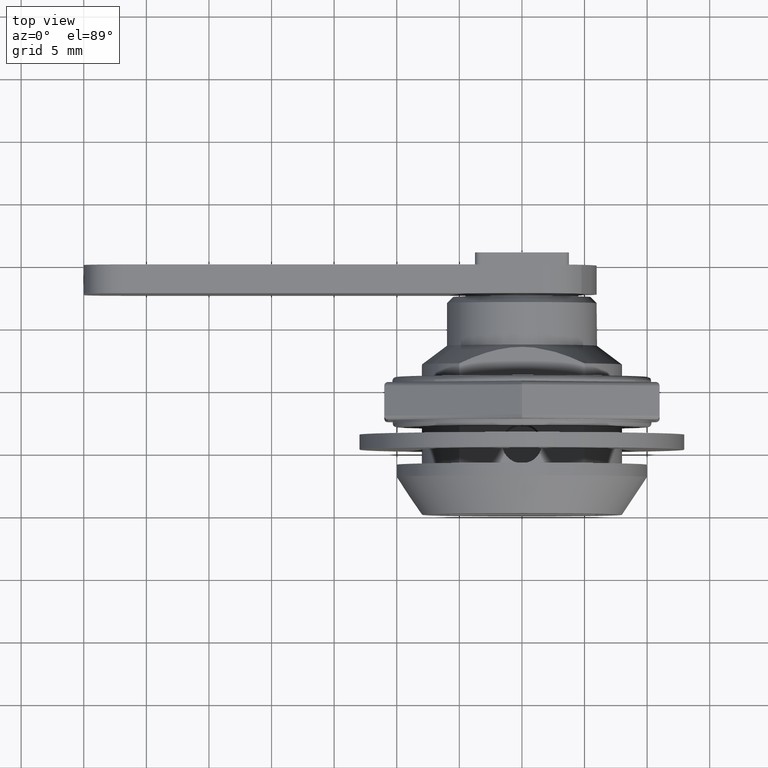
[diagram: clean part render]
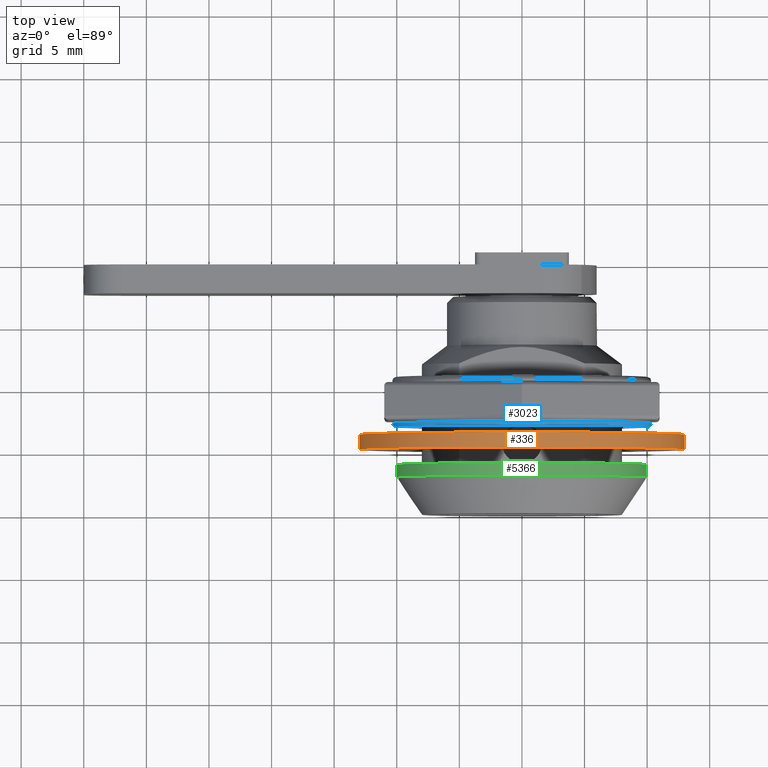
[diagram: same view with three faces highlighted in distinct colors, each labeled with its STEP entity id]
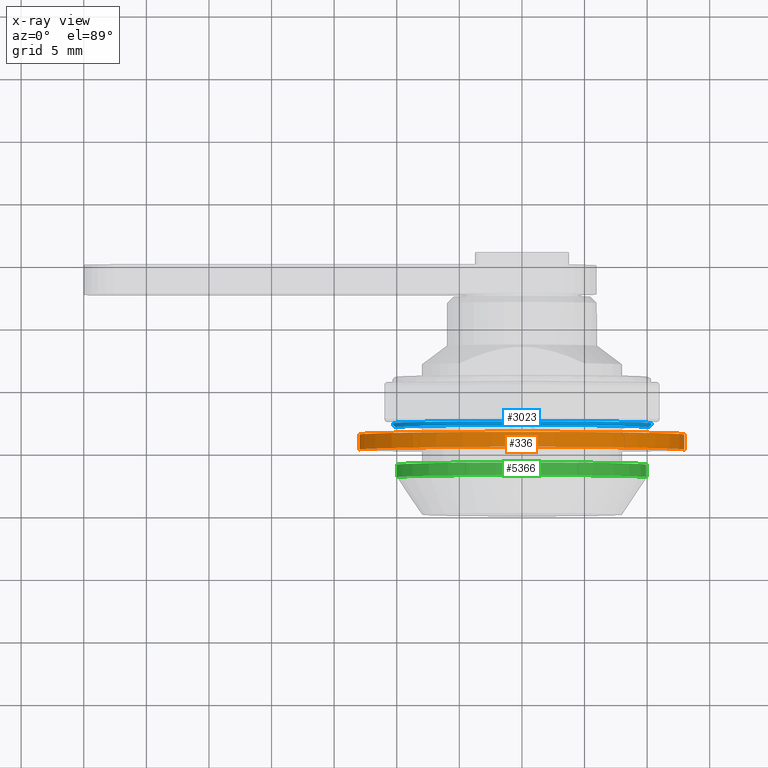
[diagram: x-ray of the same camera — body ghosted, the three highlighted faces saturated]
A machine part, top view with three faces highlighted in distinct colors.
The next image is the same camera in x-ray (body ghosted, the three faces saturated) — at least one of them is partly hidden behind the body in this view.
Their STEP definitions:

[orange] entity #336 — the highlighted face is a freeform B-spline surface patch.
#234=CARTESIAN_POINT('',(12.909123842727665,6.430000000000005,-1.534445050537861));
#235=CARTESIAN_POINT('',(12.953039000831874,6.430000000000006,-1.164991472293710));
#236=CARTESIAN_POINT('',(12.975752379484270,6.430000000000004,-0.793631013953141));
#237=CARTESIAN_POINT('',(13.769383393437407,6.430000000000005,12.182121365531126));
#238=CARTESIAN_POINT('',(0.793631013953141,6.430000000000004,12.975752379484270));
#239=CARTESIAN_POINT('',(-12.182121365531126,6.430000000000005,13.769383393437407));
#240=CARTESIAN_POINT('',(-12.975752379484270,6.430000000000004,0.793631013953140));
#241=CARTESIAN_POINT('',(12.909123842727665,5.169249999999896,-1.534445050537861));
#242=CARTESIAN_POINT('',(12.953039000831874,5.169249999999896,-1.164991472293710));
#243=CARTESIAN_POINT('',(12.975752379484270,5.169249999999896,-0.793631013953141));
#244=CARTESIAN_POINT('',(13.769383393437407,5.169249999999895,12.182121365531126));
#245=CARTESIAN_POINT('',(0.793631013953141,5.169249999999896,12.975752379484270));
#246=CARTESIAN_POINT('',(-12.182121365531126,5.169249999999895,13.769383393437407));
#247=CARTESIAN_POINT('',(-12.975752379484270,5.169249999999896,0.793631013953140));
#255=(BOUNDED_SURFACE()B_SPLINE_SURFACE(2,1,((#234,#241),(#235,#242),(#236,#243),(#237,#244),(#238,#245),(#239,#246),(#240,#247)),.UNSPECIFIED.,.F.,.F.,.U.)B_SPLINE_SURFACE_WITH_KNOTS((3,2,2,3),(2,2),(0.0,0.861564209736039,22.400669453136981,43.939774696537917),(0.0,1.0),.UNSPECIFIED.)GEOMETRIC_REPRESENTATION_ITEM()RATIONAL_B_SPLINE_SURFACE(((0.977505800795127,0.977505800795127),(0.988284271247462,0.988284271247462),(1.0,1.0),(0.707106781186548,0.707106781186548),(1.0,1.0),(0.707106781186548,0.707106781186548),(1.0,1.0)))REPRESENTATION_ITEM('')SURFACE());
#256=CARTESIAN_POINT('',(12.909125087294809,5.200000000000451,-1.534434580053699));
#257=VERTEX_POINT('',#256);
#258=CARTESIAN_POINT('',(0.0,5.199999999999900,13.0));
#259=VERTEX_POINT('',#258);
#260=CARTESIAN_POINT('',(12.909125087294804,5.200000000000450,-1.534434580053699));
#261=CARTESIAN_POINT('',(13.000000000000002,5.199999999999900,-0.769908264887077));
#262=CARTESIAN_POINT('',(13.0,5.199999999999900,-3.061516E-016));
#263=CARTESIAN_POINT('',(13.0,5.199999999999900,13.0));
#264=CARTESIAN_POINT('',(0.0,5.199999999999900,13.0));
#272=(BOUNDED_CURVE()B_SPLINE_CURVE(2,(#260,#261,#262,#263,#264),.UNSPECIFIED.,.F.,.U.)B_SPLINE_CURVE_WITH_KNOTS((3,2,3),(0.229562610592796,0.250000000000000,0.500000000000000),.UNSPECIFIED.)CURVE()GEOMETRIC_REPRESENTATION_ITEM()RATIONAL_B_SPLINE_CURVE((0.956027022864890,0.976056108929521,1.0,0.707106781186547,1.0))REPRESENTATION_ITEM(''));
#273=EDGE_CURVE('',#257,#259,#272,.T.);
#274=ORIENTED_EDGE('',*,*,#273,.F.);
#275=CARTESIAN_POINT('',(12.909125071950459,6.400000000000000,-1.534434709145851));
#276=VERTEX_POINT('',#275);
#277=CARTESIAN_POINT('',(12.909125071950459,6.400000000000000,-1.534434709145851));
#278=CARTESIAN_POINT('',(12.909125087294809,5.200000000000451,-1.534434580053699));
#279=QUASI_UNIFORM_CURVE('',1,(#277,#278),.UNSPECIFIED.,.F.,.U.);
#280=EDGE_CURVE('',#276,#257,#279,.T.);
#281=ORIENTED_EDGE('',*,*,#280,.F.);
#282=CARTESIAN_POINT('',(0.0,6.400000000000000,13.0));
#283=VERTEX_POINT('',#282);
#284=CARTESIAN_POINT('',(12.909125071950459,6.400000000000000,-1.534434709145851));
#285=CARTESIAN_POINT('',(12.999999999999998,6.400000000000001,-0.769908330115510));
#286=CARTESIAN_POINT('',(13.0,6.400000000000000,-3.061516E-016));
#287=CARTESIAN_POINT('',(13.0,6.400000000000000,13.0));
#288=CARTESIAN_POINT('',(0.0,6.400000000000000,13.0));
#296=(BOUNDED_CURVE()B_SPLINE_CURVE(2,(#284,#285,#286,#287,#288),.UNSPECIFIED.,.F.,.U.)B_SPLINE_CURVE_WITH_KNOTS((3,2,3),(0.229562608902752,0.250000000000000,0.500000000000000),.UNSPECIFIED.)CURVE()GEOMETRIC_REPRESENTATION_ITEM()RATIONAL_B_SPLINE_CURVE((0.956027019552329,0.976056106949510,1.0,0.707106781186547,1.0))REPRESENTATION_ITEM(''));
#297=EDGE_CURVE('',#276,#283,#296,.T.);
#298=ORIENTED_EDGE('',*,*,#297,.T.);
#299=CARTESIAN_POINT('',(-12.975753376607109,6.400000000000000,0.793614710802584));
#300=VERTEX_POINT('',#299);
#301=CARTESIAN_POINT('',(0.0,6.400000000000000,13.0));
#302=CARTESIAN_POINT('',(-12.229194263626280,6.400000000000000,13.000000000000002));
#303=CARTESIAN_POINT('',(-12.975753376607114,6.400000000000000,0.793614710802584));
#311=(BOUNDED_CURVE()B_SPLINE_CURVE(2,(#301,#302,#303),.UNSPECIFIED.,.F.,.U.)B_SPLINE_CURVE_WITH_KNOTS((3,3),(0.500000000000000,0.739333179035312),.UNSPECIFIED.)CURVE()GEOMETRIC_REPRESENTATION_ITEM()RATIONAL_B_SPLINE_CURVE((1.0,0.719603739293964,0.976072506303046))REPRESENTATION_ITEM(''));
#312=EDGE_CURVE('',#283,#300,#311,.T.);
#313=ORIENTED_EDGE('',*,*,#312,.T.);
#314=CARTESIAN_POINT('',(-12.975753389061961,5.200000000000066,0.793614507159091));
#315=VERTEX_POINT('',#314);
#316=CARTESIAN_POINT('',(-12.975753376607109,6.400000000000000,0.793614710802584));
#317=CARTESIAN_POINT('',(-12.975753389061961,5.200000000000066,0.793614507159091));
#318=QUASI_UNIFORM_CURVE('',1,(#316,#317),.UNSPECIFIED.,.F.,.U.);
#319=EDGE_CURVE('',#300,#315,#318,.T.);
#320=ORIENTED_EDGE('',*,*,#319,.T.);
#321=CARTESIAN_POINT('',(0.0,5.199999999999900,13.0));
#322=CARTESIAN_POINT('',(-12.229194455911772,5.199999999999901,12.999999999999998));
#323=CARTESIAN_POINT('',(-12.975753389061964,5.200000000000066,0.793614507159091));
#331=(BOUNDED_CURVE()B_SPLINE_CURVE(2,(#321,#322,#323),.UNSPECIFIED.,.F.,.U.)B_SPLINE_CURVE_WITH_KNOTS((3,3),(0.500000000000000,0.739333181743289),.UNSPECIFIED.)CURVE()GEOMETRIC_REPRESENTATION_ITEM()RATIONAL_B_SPLINE_CURVE((1.0,0.719603736121372,0.976072512106768))REPRESENTATION_ITEM(''));
#332=EDGE_CURVE('',#259,#315,#331,.T.);
#333=ORIENTED_EDGE('',*,*,#332,.F.);
#334=EDGE_LOOP('',(#274,#281,#298,#313,#320,#333));
#335=FACE_OUTER_BOUND('',#334,.T.);
#336=ADVANCED_FACE('',(#335),#255,.T.);

[blue] entity #3023 — the highlighted face is a freeform B-spline surface patch.
#2464=CARTESIAN_POINT('',(10.344483178601459,7.299999999541669,-0.129999452427076));
#2465=VERTEX_POINT('',#2464);
#2527=CARTESIAN_POINT('',(-10.320116165581149,7.299999999519034,0.721411407527404));
#2528=VERTEX_POINT('',#2527);
#2544=CARTESIAN_POINT('',(-3.577206E-015,7.299999999999900,10.345300000000000));
#2545=VERTEX_POINT('',#2544);
#2546=CARTESIAN_POINT('',(-3.577206E-015,7.299999999999900,10.345300000000000));
#2547=CARTESIAN_POINT('',(-9.647373446019955,7.299999999999902,10.345300000000002));
#2548=CARTESIAN_POINT('',(-10.320116165581148,7.299999999519034,0.721411407527404));
#2556=(BOUNDED_CURVE()B_SPLINE_CURVE(2,(#2546,#2547,#2548),.UNSPECIFIED.,.F.,.U.)B_SPLINE_CURVE_WITH_KNOTS((3,3),(0.500000000000000,0.737833686535003),.UNSPECIFIED.)CURVE()GEOMETRIC_REPRESENTATION_ITEM()RATIONAL_B_SPLINE_CURVE((1.0,0.721360504033973,0.972879876386788))REPRESENTATION_ITEM(''));
#2557=EDGE_CURVE('',#2545,#2528,#2556,.T.);
#2559=CARTESIAN_POINT('',(10.344483178601461,7.299999999541669,-0.129999452427076));
#2560=CARTESIAN_POINT('',(10.345299999999995,7.299999999999900,-0.065002292378328));
#2561=CARTESIAN_POINT('',(10.345300000000000,7.299999999999900,0.0));
#2562=CARTESIAN_POINT('',(10.345299999999996,7.299999999999901,10.345300000000000));
#2563=CARTESIAN_POINT('',(-3.577206E-015,7.299999999999900,10.345300000000000));
#2571=(BOUNDED_CURVE()B_SPLINE_CURVE(2,(#2559,#2560,#2561,#2562,#2563),.UNSPECIFIED.,.F.,.U.)B_SPLINE_CURVE_WITH_KNOTS((3,2,3),(0.247784295920986,0.250000000000000,0.500000000000000),.UNSPECIFIED.)CURVE()GEOMETRIC_REPRESENTATION_ITEM()RATIONAL_B_SPLINE_CURVE((0.994854295642304,0.997404141201438,1.0,0.707106781186548,1.0))REPRESENTATION_ITEM(''));
#2572=EDGE_CURVE('',#2465,#2545,#2571,.T.);
#2897=CARTESIAN_POINT('',(-10.020846464315451,6.999999999999900,0.700491432120691));
#2898=VERTEX_POINT('',#2897);
#2916=CARTESIAN_POINT('',(-10.320116165581151,7.299999999519034,0.721411407527404));
#2917=CARTESIAN_POINT('',(-10.320116164622036,7.000000001777644,0.721411407456358));
#2918=CARTESIAN_POINT('',(-10.020846464315452,6.999999999999900,0.700491432120691));
#2926=(BOUNDED_CURVE()B_SPLINE_CURVE(2,(#2916,#2917,#2918),.UNSPECIFIED.,.F.,.U.)B_SPLINE_CURVE_WITH_KNOTS((3,3),(-1.725134639994306,-0.274865362795078),.UNSPECIFIED.)CURVE()GEOMETRIC_REPRESENTATION_ITEM()RATIONAL_B_SPLINE_CURVE((0.863472074226119,0.610566961494270,0.863472073253266))REPRESENTATION_ITEM(''));
#2927=EDGE_CURVE('',#2528,#2898,#2926,.T.);
#2933=CARTESIAN_POINT('',(10.044506872416360,6.999999999999901,-0.126229640664328));
#2934=VERTEX_POINT('',#2933);
#2935=CARTESIAN_POINT('',(10.344483178601461,7.299999999541669,-0.129999452427076));
#2936=CARTESIAN_POINT('',(10.344483177685339,7.000000014155956,-0.129999452393732));
#2937=CARTESIAN_POINT('',(10.044506872416360,6.999999999999901,-0.126229640664328));
#2945=(BOUNDED_CURVE()B_SPLINE_CURVE(2,(#2935,#2936,#2937),.UNSPECIFIED.,.F.,.U.)B_SPLINE_CURVE_WITH_KNOTS((3,3),(-1.725134640149041,-0.274865405108078),.UNSPECIFIED.)CURVE()GEOMETRIC_REPRESENTATION_ITEM()RATIONAL_B_SPLINE_CURVE((0.883342148535299,0.624617233319113,0.883342132387755))REPRESENTATION_ITEM(''));
#2946=EDGE_CURVE('',#2465,#2934,#2945,.T.);
#2964=CARTESIAN_POINT('',(10.343757029179558,7.320861368123443,-0.129990326862133));
#2965=CARTESIAN_POINT('',(10.473747356041690,7.320861368123441,10.213766702317425));
#2966=CARTESIAN_POINT('',(0.129990326862131,7.320861368123443,10.343757029179562));
#2967=CARTESIAN_POINT('',(-9.638172205141423,7.320861368123442,10.466513841505643));
#2968=CARTESIAN_POINT('',(-10.319391726645135,7.320861368123444,0.721360766764703));
#2969=CARTESIAN_POINT('',(10.367742797913220,6.976738261514663,-0.130291756788313));
#2970=CARTESIAN_POINT('',(10.498034554701537,6.976738261514665,10.237451041124910));
#2971=CARTESIAN_POINT('',(0.130291756788310,6.976738261514663,10.367742797913223));
#2972=CARTESIAN_POINT('',(-9.660521818427540,6.976738261514664,10.490784266626983));
#2973=CARTESIAN_POINT('',(-10.343320995548988,6.976738261514664,0.723033504482376));
#2974=CARTESIAN_POINT('',(10.023646882783217,7.000726224994313,-0.125967492369351));
#2975=CARTESIAN_POINT('',(10.149614375152563,7.000726224994313,9.897679390413867));
#2976=CARTESIAN_POINT('',(0.125967492369348,7.000726224994313,10.023646882783220));
#2977=CARTESIAN_POINT('',(-9.339897921737675,7.000726224994313,10.142604717517889));
#2978=CARTESIAN_POINT('',(-10.000035617736263,7.000726224994315,0.699036682778370));
#2986=(BOUNDED_SURFACE()B_SPLINE_SURFACE(2,2,((#2964,#2969,#2974),(#2965,#2970,#2975),(#2966,#2971,#2976),(#2967,#2972,#2977),(#2968,#2973,#2978)),.UNSPECIFIED.,.F.,.F.,.U.)B_SPLINE_SURFACE_WITH_KNOTS((3,2,3),(3,3),(0.0,17.139451048516520,33.593324055092388),(0.0,0.546713060002787),.UNSPECIFIED.)GEOMETRIC_REPRESENTATION_ITEM()RATIONAL_B_SPLINE_SURFACE(((0.910480121353096,0.597479071145387,0.910480483917619),(0.643806667944325,0.422481502823943,0.643806924316158),(0.910480121353096,0.597479071145387,0.910480483917619),(0.654473606080676,0.429481405556801,0.654473866700216),(0.889999600131302,0.584039257898300,0.889999954540227)))REPRESENTATION_ITEM('')SURFACE());
#2987=CARTESIAN_POINT('',(-3.577206E-015,6.999999999999901,10.045299999999999));
#2988=VERTEX_POINT('',#2987);
#2989=CARTESIAN_POINT('',(-3.577206E-015,6.999999999999901,10.045299999999999));
#2990=CARTESIAN_POINT('',(-9.367612391832546,6.999999999999900,10.045300000000001));
#2991=CARTESIAN_POINT('',(-10.020846464315452,6.999999999999900,0.700491432120691));
#2999=(BOUNDED_CURVE()B_SPLINE_CURVE(2,(#2989,#2990,#2991),.UNSPECIFIED.,.F.,.U.)B_SPLINE_CURVE_WITH_KNOTS((3,3),(0.500000000000000,0.737833686534863),.UNSPECIFIED.)CURVE()GEOMETRIC_REPRESENTATION_ITEM()RATIONAL_B_SPLINE_CURVE((1.0,0.721360504034137,0.972879876386492))REPRESENTATION_ITEM(''));
#3000=EDGE_CURVE('',#2988,#2898,#2999,.T.);
#3001=ORIENTED_EDGE('',*,*,#3000,.F.);
#3002=CARTESIAN_POINT('',(10.044506872416360,6.999999999999901,-0.126229640664328));
#3003=CARTESIAN_POINT('',(10.045299999999994,6.999999999999901,-0.063117312094089));
#3004=CARTESIAN_POINT('',(10.045299999999999,6.999999999999901,0.0));
#3005=CARTESIAN_POINT('',(10.045299999999997,6.999999999999899,10.045299999999999));
#3006=CARTESIAN_POINT('',(-3.577206E-015,6.999999999999901,10.045299999999999));
#3014=(BOUNDED_CURVE()B_SPLINE_CURVE(2,(#3002,#3003,#3004,#3005,#3006),.UNSPECIFIED.,.F.,.U.)B_SPLINE_CURVE_WITH_KNOTS((3,2,3),(0.247784295916996,0.250000000000000,0.500000000000000),.UNSPECIFIED.)CURVE()GEOMETRIC_REPRESENTATION_ITEM()RATIONAL_B_SPLINE_CURVE((0.994854295633120,0.997404141196763,1.0,0.707106781186548,1.0))REPRESENTATION_ITEM(''));
#3015=EDGE_CURVE('',#2934,#2988,#3014,.T.);
#3016=ORIENTED_EDGE('',*,*,#3015,.F.);
#3017=ORIENTED_EDGE('',*,*,#2946,.F.);
#3018=ORIENTED_EDGE('',*,*,#2572,.T.);
#3019=ORIENTED_EDGE('',*,*,#2557,.T.);
#3020=ORIENTED_EDGE('',*,*,#2927,.T.);
#3021=EDGE_LOOP('',(#3001,#3016,#3017,#3018,#3019,#3020));
#3022=FACE_OUTER_BOUND('',#3021,.T.);
#3023=ADVANCED_FACE('',(#3022),#2986,.T.);

[green] entity #5366 — the highlighted face is a freeform B-spline surface patch.
#5253=CARTESIAN_POINT('',(9.950790232717427,4.025000000000000,1.000839510568047));
#5254=CARTESIAN_POINT('',(9.942758998471483,4.025000000000000,1.070767094484996));
#5255=CARTESIAN_POINT('',(8.978151525860811,4.025000000000000,9.469559599132071));
#5256=CARTESIAN_POINT('',(0.610485395348566,4.025000000000000,9.981347984218667));
#5257=CARTESIAN_POINT('',(-9.370862588870100,4.025000000000000,10.591833379567237));
#5258=CARTESIAN_POINT('',(-9.985395107260988,4.025000000000001,0.544315518512651));
#5259=CARTESIAN_POINT('',(-9.989420064630229,4.025000000000000,0.478508047228182));
#5260=CARTESIAN_POINT('',(9.950790232717427,2.974374999999999,1.000839510568047));
#5261=CARTESIAN_POINT('',(9.942758998471483,2.974374999999999,1.070767094484996));
#5262=CARTESIAN_POINT('',(8.978151525860811,2.974374999999998,9.469559599132071));
#5263=CARTESIAN_POINT('',(0.610485395348566,2.974374999999999,9.981347984218667));
#5264=CARTESIAN_POINT('',(-9.370862588870100,2.974375000000000,10.591833379567237));
#5265=CARTESIAN_POINT('',(-9.985395107260988,2.974375000000000,0.544315518512651));
#5266=CARTESIAN_POINT('',(-9.989420064630229,2.974374999999998,0.478508047228182));
#5274=(BOUNDED_SURFACE()B_SPLINE_SURFACE(2,1,((#5253,#5260),(#5254,#5261),(#5255,#5262),(#5256,#5263),(#5257,#5264),(#5258,#5265),(#5259,#5266)),.UNSPECIFIED.,.F.,.F.,.U.)B_SPLINE_SURFACE_WITH_KNOTS((3,1,2,1,3),(2,2),(0.0,0.155762323050952,14.736079718583889,31.304622213507692,31.460385331566410),(0.0,1.0),.UNSPECIFIED.)GEOMETRIC_REPRESENTATION_ITEM()RATIONAL_B_SPLINE_SURFACE(((0.942326294792141,0.942326294792141),(0.940233623489370,0.940233623489370),(0.742253967444162,0.742253967444162),(1.0,1.0),(0.707106781186548,0.707106781186548),(1.002753528925952,1.002753528925952),(1.005507057851904,1.005507057851904)))REPRESENTATION_ITEM('')SURFACE());
#5275=CARTESIAN_POINT('',(9.934691934353491,3.0,1.141006647435318));
#5276=VERTEX_POINT('',#5275);
#5277=CARTESIAN_POINT('',(-3.577206E-015,3.0,10.0));
#5278=VERTEX_POINT('',#5277);
#5279=CARTESIAN_POINT('',(9.934691934353491,3.000000000000000,1.141006647435319));
#5280=CARTESIAN_POINT('',(8.917230057131825,3.0,10.0));
#5281=CARTESIAN_POINT('',(-3.577206E-015,3.0,10.0));
#5289=(BOUNDED_CURVE()B_SPLINE_CURVE(2,(#5279,#5280,#5281),.UNSPECIFIED.,.F.,.U.)B_SPLINE_CURVE_WITH_KNOTS((3,3),(0.269767755877690,0.500000000000000),.UNSPECIFIED.)CURVE()GEOMETRIC_REPRESENTATION_ITEM()RATIONAL_B_SPLINE_CURVE((0.957343736458532,0.730266147777488,1.0))REPRESENTATION_ITEM(''));
#5290=EDGE_CURVE('',#5276,#5278,#5289,.T.);
#5291=ORIENTED_EDGE('',*,*,#5290,.F.);
#5292=CARTESIAN_POINT('',(9.934693786834274,4.0,1.140990517740093));
#5293=VERTEX_POINT('',#5292);
#5294=CARTESIAN_POINT('',(9.934693786834274,4.0,1.140990517740093));
#5295=CARTESIAN_POINT('',(9.934691934353491,3.0,1.141006647435318));
#5296=QUASI_UNIFORM_CURVE('',1,(#5294,#5295),.UNSPECIFIED.,.F.,.U.);
#5297=EDGE_CURVE('',#5293,#5276,#5296,.T.);
#5298=ORIENTED_EDGE('',*,*,#5297,.F.);
#5299=CARTESIAN_POINT('',(-3.577206E-015,4.0,10.0));
#5300=VERTEX_POINT('',#5299);
#5301=CARTESIAN_POINT('',(9.934693786834274,4.0,1.140990517740093));
#5302=CARTESIAN_POINT('',(8.917244630113229,4.000000000000001,10.0));
#5303=CARTESIAN_POINT('',(-3.577206E-015,4.0,10.0));
#5311=(BOUNDED_CURVE()B_SPLINE_CURVE(2,(#5301,#5302,#5303),.UNSPECIFIED.,.F.,.U.)B_SPLINE_CURVE_WITH_KNOTS((3,3),(0.269767481110062,0.500000000000000),.UNSPECIFIED.)CURVE()GEOMETRIC_REPRESENTATION_ITEM()RATIONAL_B_SPLINE_CURVE((0.957344278464731,0.730265825867189,1.0))REPRESENTATION_ITEM(''));
#5312=EDGE_CURVE('',#5293,#5300,#5311,.T.);
#5313=ORIENTED_EDGE('',*,*,#5312,.T.);
#5314=CARTESIAN_POINT('',(-9.981348955472564,4.0,0.610469515073188));
#5315=VERTEX_POINT('',#5314);
#5316=CARTESIAN_POINT('',(-3.577206E-015,4.0,10.0));
#5317=CARTESIAN_POINT('',(-9.407075663621679,4.0,10.000000000000002));
#5318=CARTESIAN_POINT('',(-9.981348955472564,4.000000000000000,0.610469515073188));
#5326=(BOUNDED_CURVE()B_SPLINE_CURVE(2,(#5316,#5317,#5318),.UNSPECIFIED.,.F.,.U.)B_SPLINE_CURVE_WITH_KNOTS((3,3),(0.500000000000000,0.739333236763115),.UNSPECIFIED.)CURVE()GEOMETRIC_REPRESENTATION_ITEM()RATIONAL_B_SPLINE_CURVE((1.0,0.719603671661636,0.976072630024984))REPRESENTATION_ITEM(''));
#5327=EDGE_CURVE('',#5300,#5315,#5326,.T.);
#5328=ORIENTED_EDGE('',*,*,#5327,.T.);
#5329=CARTESIAN_POINT('',(-9.981348046982317,3.000000000000292,0.610484369170315));
#5330=VERTEX_POINT('',#5329);
#5331=CARTESIAN_POINT('',(-9.981348955472564,4.0,0.610469515073188));
#5332=CARTESIAN_POINT('',(-9.981348046982317,3.000000000000292,0.610484369170315));
#5333=QUASI_UNIFORM_CURVE('',1,(#5331,#5332),.UNSPECIFIED.,.F.,.U.);
#5334=EDGE_CURVE('',#5315,#5330,#5333,.T.);
#5335=ORIENTED_EDGE('',*,*,#5334,.T.);
#5336=CARTESIAN_POINT('',(-9.969173337333608,3.000000000012243,0.784590957352340));
#5337=VERTEX_POINT('',#5336);
#5338=CARTESIAN_POINT('',(-9.969173337333608,3.000000000012243,0.784590957352340));
#5339=CARTESIAN_POINT('',(-9.976020399215598,2.999999999999999,0.697590787151431));
#5340=CARTESIAN_POINT('',(-9.981348046982317,3.000000000000292,0.610484369170315));
#5348=(BOUNDED_CURVE()B_SPLINE_CURVE(2,(#5338,#5339,#5340),.UNSPECIFIED.,.F.,.U.)B_SPLINE_CURVE_WITH_KNOTS((3,3),(0.736331300630248,0.739332979981433),.UNSPECIFIED.)CURVE()GEOMETRIC_REPRESENTATION_ITEM()RATIONAL_B_SPLINE_CURVE((0.969723356166558,0.972855494073105,0.976072079692254))REPRESENTATION_ITEM(''));
#5349=EDGE_CURVE('',#5337,#5330,#5348,.T.);
#5350=ORIENTED_EDGE('',*,*,#5349,.F.);
#5351=CARTESIAN_POINT('',(-3.577206E-015,3.0,10.0));
#5352=CARTESIAN_POINT('',(-9.243904916445830,3.000000000000000,9.999999999999998));
#5353=CARTESIAN_POINT('',(-9.969173337333608,3.000000000012243,0.784590957352340));
#5361=(BOUNDED_CURVE()B_SPLINE_CURVE(2,(#5351,#5352,#5353),.UNSPECIFIED.,.F.,.U.)B_SPLINE_CURVE_WITH_KNOTS((3,3),(0.500000000000000,0.736331300630248),.UNSPECIFIED.)CURVE()GEOMETRIC_REPRESENTATION_ITEM()RATIONAL_B_SPLINE_CURVE((1.0,0.723120658608148,0.969723356166559))REPRESENTATION_ITEM(''));
#5362=EDGE_CURVE('',#5278,#5337,#5361,.T.);
#5363=ORIENTED_EDGE('',*,*,#5362,.F.);
#5364=EDGE_LOOP('',(#5291,#5298,#5313,#5328,#5335,#5350,#5363));
#5365=FACE_OUTER_BOUND('',#5364,.T.);
#5366=ADVANCED_FACE('',(#5365),#5274,.T.);